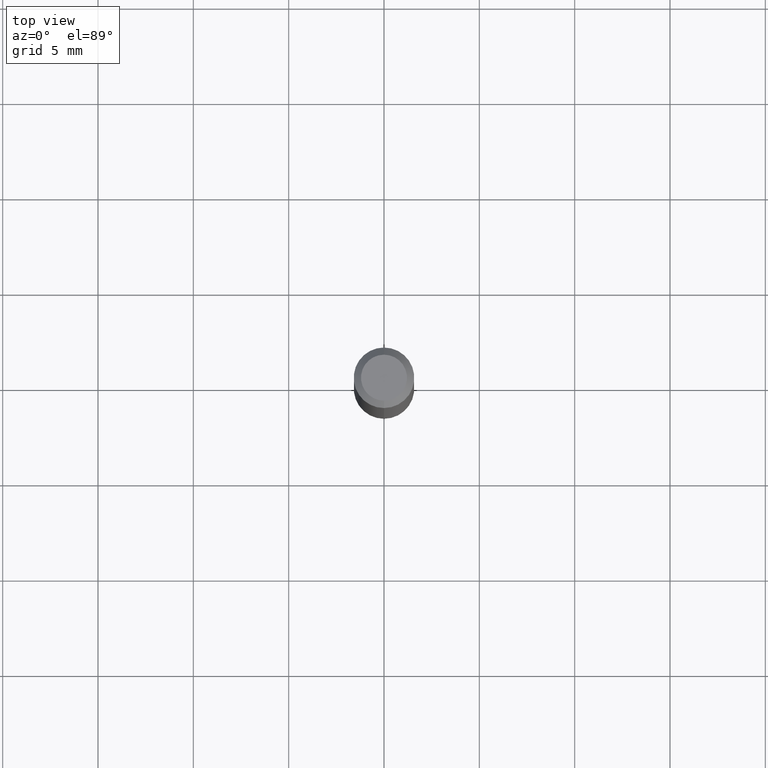
[diagram: clean part render]
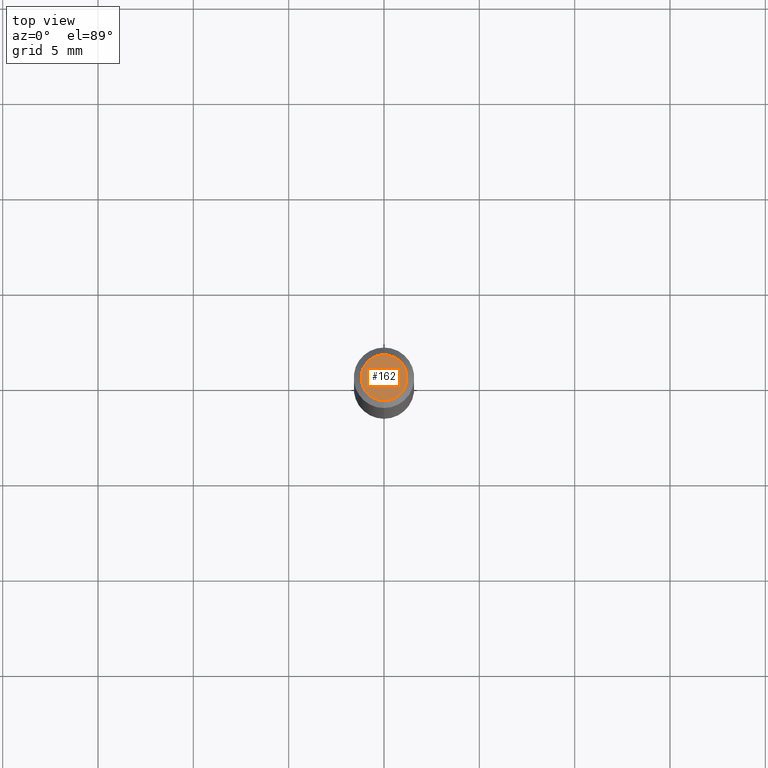
[diagram: same view with one face highlighted and labeled with its STEP entity id]
A machine part, top view. The second image highlights one B-rep face of the part: STEP entity #162.
In plain terms, the highlighted planar face has unit normal (0, -0, -1).
Its self-contained STEP definition (entity closure, byte-faithful):
#38 = CARTESIAN_POINT ( 'NONE',  ( 3.840629472727447874E-16, 0.04749999999999999362, -1.747056831868805136E-16 ) ) ;
#39 = DIRECTION ( 'NONE',  ( -2.445464073693033846E-29, 3.491488116041193257E-15, 1.000000000000000000 ) ) ;
#52 = CARTESIAN_POINT ( 'NONE',  ( 3.316907271900976096E-16, 0.04749999999999999362, -1.702756843494185878E-16 ) ) ;
#86 = CIRCLE ( 'NONE', #300, 0.04749999999999999362 ) ;
#108 = EDGE_CURVE ( 'NONE', #310, #508, #86, .T. ) ;
#122 = DIRECTION ( 'NONE',  ( 2.445464073693033286E-29, -3.491488116041193651E-15, -1.000000000000000000 ) ) ;
#127 = DIRECTION ( 'NONE',  ( -6.982962677686266711E-15, -1.000000000000000000, 3.491488116041193257E-15 ) ) ;
#134 = AXIS2_PLACEMENT_3D ( 'NONE', #168, #39, #399 ) ;
#162 = ADVANCED_FACE ( 'NONE', ( #272 ), #315, .F. ) ;
#168 = CARTESIAN_POINT ( 'NONE',  ( 2.166680600703005880E-46, -3.093457659014917568E-32, -8.859997674923836270E-18 ) ) ;
#220 = EDGE_CURVE ( 'NONE', #508, #310, #476, .T. ) ;
#237 = DIRECTION ( 'NONE',  ( 6.982962677686265922E-15, 1.000000000000000000, -3.491488116041193651E-15 ) ) ;
#272 = FACE_OUTER_BOUND ( 'NONE', #341, .T. ) ;
#300 = AXIS2_PLACEMENT_3D ( 'NONE', #356, #475, #127 ) ;
#310 = VERTEX_POINT ( 'NONE', #38 ) ;
#315 = PLANE ( 'NONE',  #358 ) ;
#341 = EDGE_LOOP ( 'NONE', ( #470, #452 ) ) ;
#356 = CARTESIAN_POINT ( 'NONE',  ( 2.166680600703005880E-46, -3.093457659014917568E-32, -8.859997674923836270E-18 ) ) ;
#358 = AXIS2_PLACEMENT_3D ( 'NONE', #52, #122, #237 ) ;
#382 = CARTESIAN_POINT ( 'NONE',  ( -3.773273898774340269E-16, -0.04749999999999999362, 1.569856878370328349E-16 ) ) ;
#399 = DIRECTION ( 'NONE',  ( -6.982962677686266711E-15, -1.000000000000000000, 3.491488116041193257E-15 ) ) ;
#452 = ORIENTED_EDGE ( 'NONE', *, *, #220, .T. ) ;
#470 = ORIENTED_EDGE ( 'NONE', *, *, #108, .T. ) ;
#475 = DIRECTION ( 'NONE',  ( -2.445464073693033846E-29, 3.491488116041193257E-15, 1.000000000000000000 ) ) ;
#476 = CIRCLE ( 'NONE', #134, 0.04749999999999999362 ) ;
#508 = VERTEX_POINT ( 'NONE', #382 ) ;